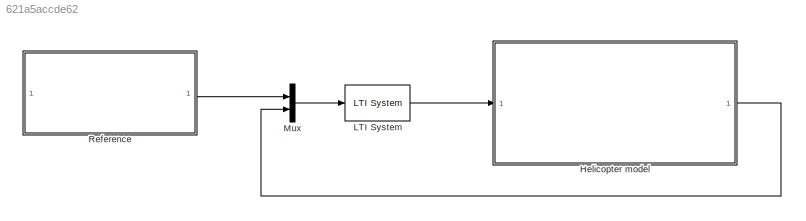
MODEL slx_621a5accde62
KIND model
CONFIG AbsTol = auto
CONFIG EnableMultiTasking = off
CONFIG FixedStep = auto
CONFIG MaxStep = 0.01
CONFIG MinStep = auto
CONFIG RelTol = 1e-5
CONFIG SampleTimeConstraint = Unconstrained
CONFIG SolverName = VariableStepAuto
CONFIG StartTime = 0.0
CONFIG StopTime = 20
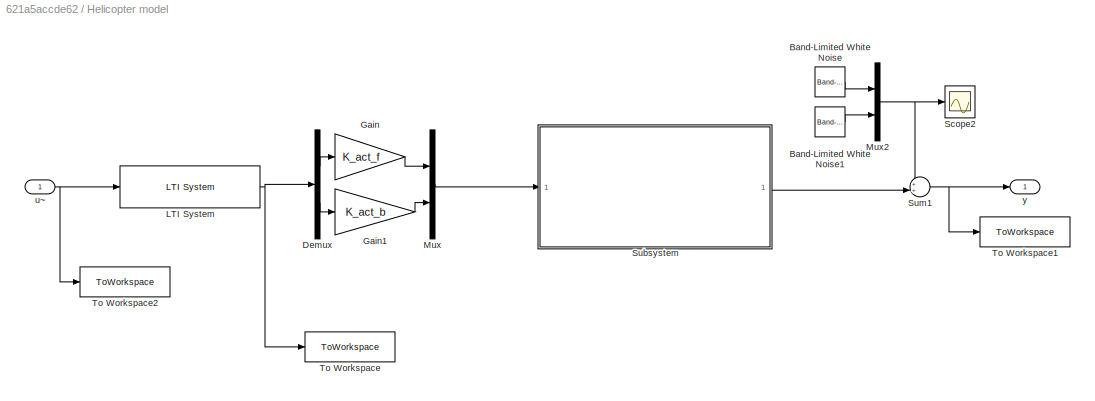
BLOCK [SubSystem] Helicopter model
BLOCK [Reference] Helicopter model/Band-Limited White Noise  REF=simulink/Sources/Band-Limited
White Noise
  SourceBlock = simulink/Sources/Band-Limited\nWhite Noise
  SourceType = Band-Limited White Noise.
BLOCK [Reference] Helicopter model/Band-Limited White Noise1  REF=simulink/Sources/Band-Limited
White Noise
  SourceBlock = simulink/Sources/Band-Limited\nWhite Noise
  SourceType = Band-Limited White Noise.
BLOCK [Demux] Helicopter model/Demux
  Outputs = 2
BLOCK [Gain] Helicopter model/Gain
  Gain = K_act_f
BLOCK [Gain] Helicopter model/Gain1
  Gain = K_act_b
BLOCK [Reference] Helicopter model/LTI System  REF=cstblocks/LTI System
  SourceBlock = cstblocks/LTI System
  SourceType = LTI Block
BLOCK [Mux] Helicopter model/Mux
  DisplayOption = bar
  Inputs = 2
BLOCK [Mux] Helicopter model/Mux2
  DisplayOption = bar
  Inputs = 2
BLOCK [Scope] Helicopter model/Scope2
  Floating = off
  NumInputPorts = 1
  ScopeSpecificationString = Simulink.scopes.TimeScopeBlockCfg('CurrentConfiguration', extmgr.ConfigurationSet(extmgr.Configuration('Core','General UI',true),extmgr.Configuration('Core','Source UI',true),extmgr.Configuration('Sources','WiredSimulink',true,'DataLoggingVariableName','ScopeData4'),extmgr.Configuration('Visuals','Time Domain',true,'SerializedDisplays',{struct('MinYLimReal','-0.15167','MaxYLimReal','0.15543','YLab...<+1508ch>
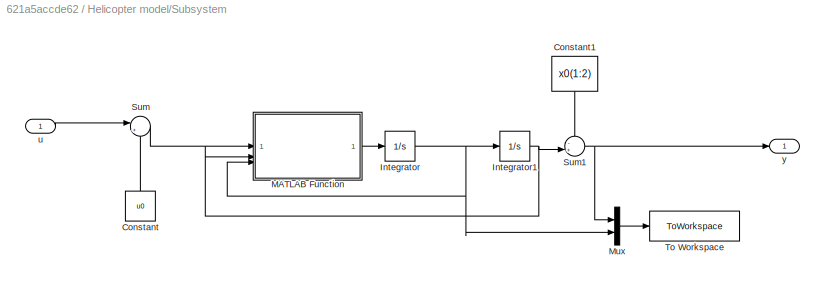
BLOCK [SubSystem] Helicopter model/Subsystem
BLOCK [Constant] Helicopter model/Subsystem/Constant
  NameLocation = right
  Value = u0
BLOCK [Constant] Helicopter model/Subsystem/Constant1
  NameLocation = left
  Value = x0(1:2)
BLOCK [Integrator] Helicopter model/Subsystem/Integrator
BLOCK [Integrator] Helicopter model/Subsystem/Integrator1
  InitialCondition = x0(1:2)
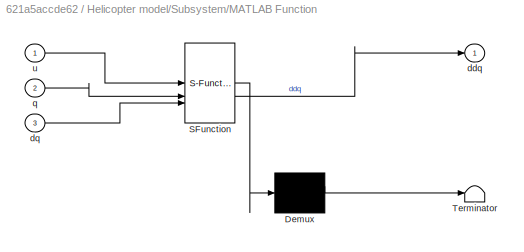
BLOCK [SubSystem] Helicopter model/Subsystem/MATLAB Function
  ErrorFcn = Stateflow.Translate.translate
  PermitHierarchicalResolution = ExplicitOnly
  SFBlockType = MATLAB Function
  TreatAsAtomicUnit = on
BLOCK [Demux] Helicopter model/Subsystem/MATLAB Function/ Demux 
  Outputs = 1
BLOCK [S-Function] Helicopter model/Subsystem/MATLAB Function/ SFunction 
  EnableBusSupport = on
  FunctionName = sf_sfun
  PortCounts = [3 2]
  SFcnIsStateOwnerBlock = off
  SFunctionDeploymentMode = off
  Tag = Stateflow S-Function 2
BLOCK [Terminator] Helicopter model/Subsystem/MATLAB Function/ Terminator 
BLOCK [Outport] Helicopter model/Subsystem/MATLAB Function/ddq
BLOCK [Inport] Helicopter model/Subsystem/MATLAB Function/dq
  Port = 3
BLOCK [Inport] Helicopter model/Subsystem/MATLAB Function/q
  Port = 2
BLOCK [Inport] Helicopter model/Subsystem/MATLAB Function/u
BLOCK [Mux] Helicopter model/Subsystem/Mux
  DisplayOption = bar
  Inputs = 2
BLOCK [Sum] Helicopter model/Subsystem/Sum
  Inputs = |++
BLOCK [Sum] Helicopter model/Subsystem/Sum1
  Inputs = -+|
BLOCK [ToWorkspace] Helicopter model/Subsystem/To Workspace
  FixptAsFi = on
  MaxDataPoints = inf
  SampleTime = -1
  SaveFormat = Timeseries
  VariableName = x
BLOCK [Inport] Helicopter model/Subsystem/u
BLOCK [Outport] Helicopter model/Subsystem/y
BLOCK [Sum] Helicopter model/Sum1
  Inputs = ++|
BLOCK [ToWorkspace] Helicopter model/To Workspace
  FixptAsFi = on
  MaxDataPoints = inf
  SampleTime = -1
  SaveFormat = Timeseries
  VariableName = u_state
BLOCK [ToWorkspace] Helicopter model/To Workspace1
  FixptAsFi = on
  MaxDataPoints = inf
  SampleTime = -1
  SaveFormat = Timeseries
  VariableName = y
BLOCK [ToWorkspace] Helicopter model/To Workspace2
  FixptAsFi = on
  MaxDataPoints = inf
  SampleTime = -1
  SaveFormat = Timeseries
  VariableName = u_tilde
BLOCK [Inport] Helicopter model/u~
BLOCK [Outport] Helicopter model/y
BLOCK [Reference] LTI System  REF=cstblocks/LTI System
  SourceBlock = cstblocks/LTI System
  SourceType = LTI Block
BLOCK [Mux] Mux
  DisplayOption = bar
  Inputs = 2
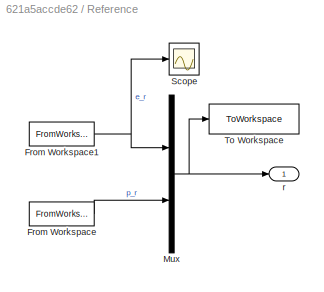
BLOCK [SubSystem] Reference
BLOCK [FromWorkspace] Reference/From Workspace
  VariableName = p_timeseries
BLOCK [FromWorkspace] Reference/From Workspace1
  VariableName = e_timeseries
BLOCK [Mux] Reference/Mux
  DisplayOption = bar
  Inputs = 2
BLOCK [Scope] Reference/Scope
  Floating = off
  NumInputPorts = 1
  ScopeSpecificationString = Simulink.scopes.TimeScopeBlockCfg('CurrentConfiguration', extmgr.ConfigurationSet(extmgr.Configuration('Core','General UI',true),extmgr.Configuration('Core','Source UI',true),extmgr.Configuration('Sources','WiredSimulink',true,'DataLoggingVariableName','ScopeData1'),extmgr.Configuration('Visuals','Time Domain',true,'SerializedDisplays',{struct('MinYLimReal','-1.00000','MaxYLimReal','1.00000','YLab...<+1392ch>
BLOCK [ToWorkspace] Reference/To Workspace
  FixptAsFi = on
  MaxDataPoints = inf
  SampleTime = -1
  SaveFormat = Timeseries
  VariableName = r
BLOCK [Outport] Reference/r
LINE Helicopter model/Band-Limited White Noise1:1 -> Helicopter model/Mux2:2
LINE Helicopter model/Band-Limited White Noise:1 -> Helicopter model/Mux2:1
LINE Helicopter model/Demux:1 -> Helicopter model/Gain:1
LINE Helicopter model/Demux:2 -> Helicopter model/Gain1:1
LINE Helicopter model/Gain1:1 -> Helicopter model/Mux:2
LINE Helicopter model/Gain:1 -> Helicopter model/Mux:1
NET Helicopter model/LTI System:1 -> Helicopter model/Demux:1, Helicopter model/To Workspace:1
NET Helicopter model/Mux2:1 -> Helicopter model/Scope2:1, Helicopter model/Sum1:1
LINE Helicopter model/Mux:1 -> Helicopter model/Subsystem:1
LINE Helicopter model/Subsystem/Constant1:1 -> Helicopter model/Subsystem/Sum1:1
LINE Helicopter model/Subsystem/Constant:1 -> Helicopter model/Subsystem/Sum:2
NET Helicopter model/Subsystem/Integrator1:1 -> Helicopter model/Subsystem/MATLAB Function:2, Helicopter model/Subsystem/Sum1:2
NET Helicopter model/Subsystem/Integrator:1 -> Helicopter model/Subsystem/Integrator1:1, Helicopter model/Subsystem/MATLAB Function:3, Helicopter model/Subsystem/Mux:2
LINE Helicopter model/Subsystem/MATLAB Function:1 -> Helicopter model/Subsystem/Integrator:1
LINE Helicopter model/Subsystem/Mux:1 -> Helicopter model/Subsystem/To Workspace:1
NET Helicopter model/Subsystem/Sum1:1 -> Helicopter model/Subsystem/Mux:1, Helicopter model/Subsystem/y:1
LINE Helicopter model/Subsystem/Sum:1 -> Helicopter model/Subsystem/MATLAB Function:1
LINE Helicopter model/Subsystem/u:1 -> Helicopter model/Subsystem/Sum:1
LINE Helicopter model/Subsystem:1 -> Helicopter model/Sum1:2
NET Helicopter model/Sum1:1 -> Helicopter model/To Workspace1:1, Helicopter model/y:1
NET Helicopter model/u~:1 -> Helicopter model/LTI System:1, Helicopter model/To Workspace2:1
LINE Helicopter model:1 -> Mux:2
LINE LTI System:1 -> Helicopter model:1
LINE Mux:1 -> LTI System:1
NET Reference/From Workspace1:1 -> Reference/Mux:1, Reference/Scope:1
LINE Reference/From Workspace:1 -> Reference/Mux:2
NET Reference/Mux:1 -> Reference/To Workspace:1, Reference/r:1
LINE Reference:1 -> Mux:1
note: NET lines group one-source signal fan-out (src -> all destinations, sorted); 1:1 wires keep LINE
CHART Helicopter model/Subsystem/MATLAB Function states=1 transitions=1
  STATE_LABEL 'eML_blk_kernel()'
  STATE_LABEL 'SCRIPT:\nfunction ddq = rigid_body_dyn(u, q, dq)\n    M = M_fun(q);\n    b = b_fun(q, dq);\n    g = g_fun(q);\n    tau = tau_fun(q, u);\n\n    lam = 0;\n    ddq = (M + lam*eye(size(q, 1)))\\(-b-g+tau);\nend\n'
CHART  states=0 transitions=0
